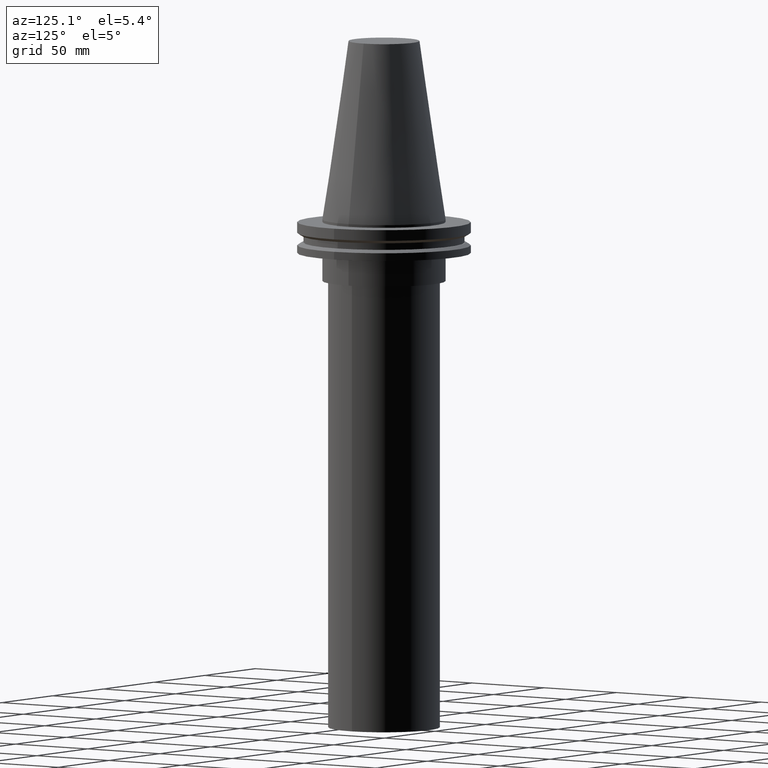
[diagram: clean part render]
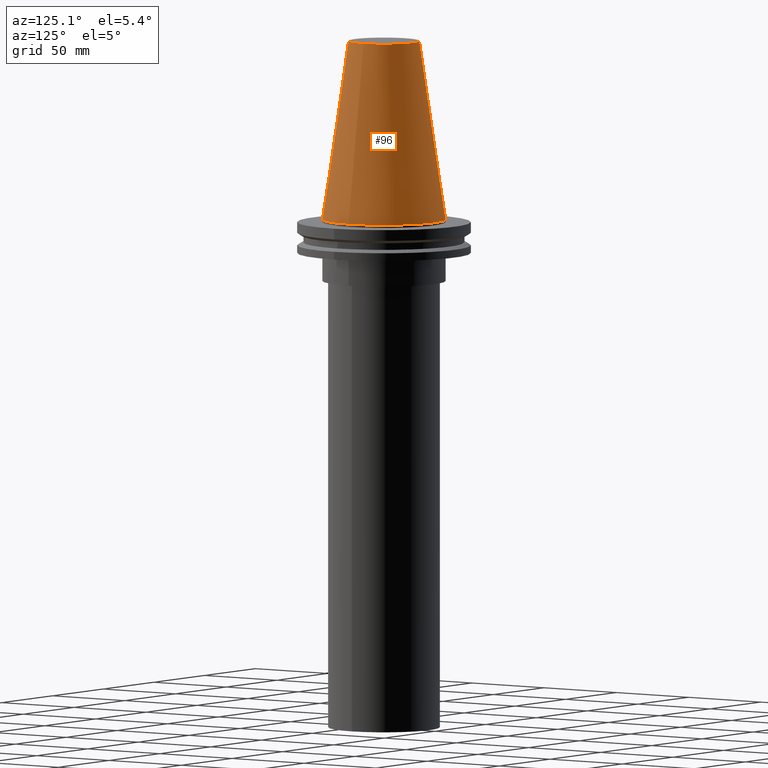
[diagram: same view with one face highlighted and labeled with its STEP entity id]
A machine part, auxiliary view. The second image highlights one B-rep face of the part: STEP entity #96.
In plain terms, the highlighted conical surface has half-angle 8.297 deg.
Its self-contained STEP definition (entity closure, byte-faithful):
#5 = AXIS2_PLACEMENT_3D ( 'NONE', #248, #250, #370 ) ;
#10 = CARTESIAN_POINT ( 'NONE',  ( 0.000000000000000000, 0.000000000000000000, 101.5999999999999801 ) ) ;
#21 = CARTESIAN_POINT ( 'NONE',  ( 0.000000000000000000, 0.000000000000000000, 0.000000000000000000 ) ) ;
#32 = EDGE_LOOP ( 'NONE', ( #35 ) ) ;
#35 = ORIENTED_EDGE ( 'NONE', *, *, #279, .F. ) ;
#36 = DIRECTION ( 'NONE',  ( 1.000000000000000000, 0.000000000000000000, 0.000000000000000000 ) ) ;
#46 = CARTESIAN_POINT ( 'NONE',  ( 34.92499999999999005, 0.000000000000000000, 0.000000000000000000 ) ) ;
#49 = FACE_BOUND ( 'NONE', #32, .T. ) ;
#62 = DIRECTION ( 'NONE',  ( -0.000000000000000000, -0.000000000000000000, 1.000000000000000000 ) ) ;
#96 = ADVANCED_FACE ( 'NONE', ( #49, #391 ), #155, .T. ) ;
#105 = CIRCLE ( 'NONE', #377, 20.10819343178871321 ) ;
#134 = VERTEX_POINT ( 'NONE', #219 ) ;
#155 = CONICAL_SURFACE ( 'NONE', #202, 34.92499999999999005, 0.1448138465474119452 ) ;
#156 = ORIENTED_EDGE ( 'NONE', *, *, #379, .T. ) ;
#166 = VERTEX_POINT ( 'NONE', #46 ) ;
#167 = CIRCLE ( 'NONE', #5, 34.92499999999999005 ) ;
#169 = DIRECTION ( 'NONE',  ( 0.000000000000000000, 0.000000000000000000, -1.000000000000000000 ) ) ;
#202 = AXIS2_PLACEMENT_3D ( 'NONE', #21, #169, #264 ) ;
#215 = EDGE_LOOP ( 'NONE', ( #156 ) ) ;
#219 = CARTESIAN_POINT ( 'NONE',  ( 20.10819343178871321, 0.000000000000000000, 101.5999999999999801 ) ) ;
#248 = CARTESIAN_POINT ( 'NONE',  ( 0.000000000000000000, 0.000000000000000000, 0.000000000000000000 ) ) ;
#250 = DIRECTION ( 'NONE',  ( -0.000000000000000000, -0.000000000000000000, 1.000000000000000000 ) ) ;
#264 = DIRECTION ( 'NONE',  ( -1.000000000000000000, 0.000000000000000000, 0.000000000000000000 ) ) ;
#279 = EDGE_CURVE ( 'NONE', #134, #134, #105, .T. ) ;
#370 = DIRECTION ( 'NONE',  ( 1.000000000000000000, 0.000000000000000000, 0.000000000000000000 ) ) ;
#377 = AXIS2_PLACEMENT_3D ( 'NONE', #10, #62, #36 ) ;
#379 = EDGE_CURVE ( 'NONE', #166, #166, #167, .T. ) ;
#391 = FACE_OUTER_BOUND ( 'NONE', #215, .T. ) ;